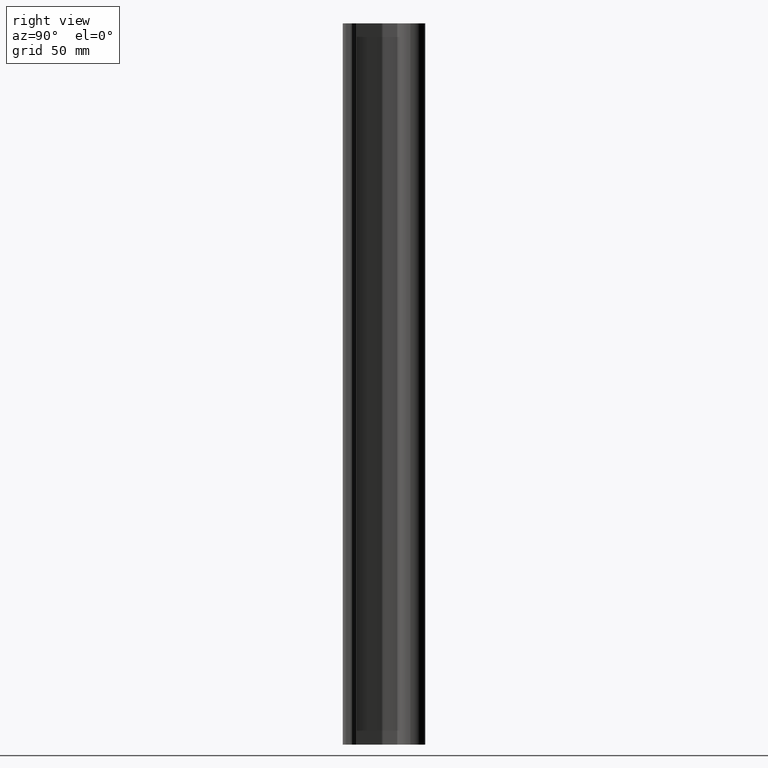
[diagram: clean part render]
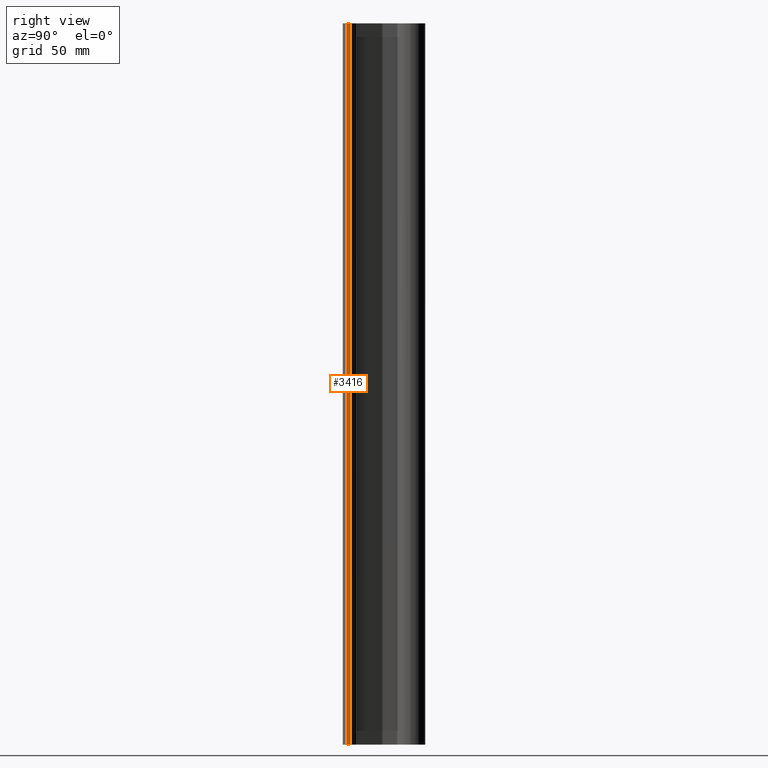
[diagram: same view with one face highlighted and labeled with its STEP entity id]
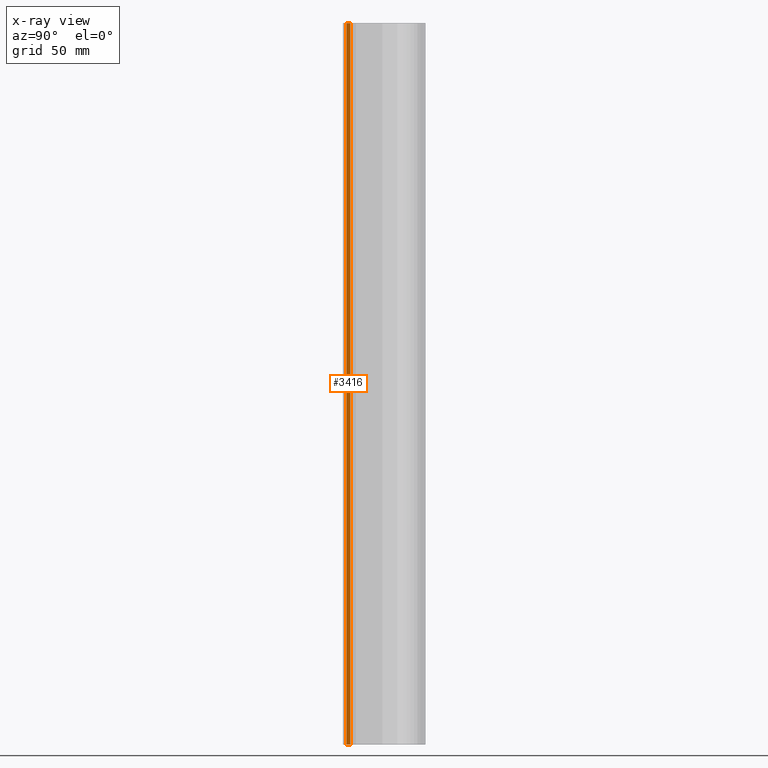
[diagram: x-ray of the same camera — body ghosted, the highlighted face saturated]
A machine part, right view. The second image highlights one B-rep face of the part: STEP entity #3416.
The next image is the same camera in x-ray: the body ghosted, the highlighted face saturated — about 0% of this face is hidden behind the body in this view.
In plain terms, the highlighted planar face has unit normal (1, 0, 0).
Its self-contained STEP definition (entity closure, byte-faithful):
#23 = EDGE_CURVE ( 'NONE', #876, #1878, #7663, .T. ) ;
#325 = ORIENTED_EDGE ( 'NONE', *, *, #584, .T. ) ;
#491 = CARTESIAN_POINT ( 'NONE',  ( 0.7500000000000003331, 0.06000000000000001166, 0.000000000000000000 ) ) ;
#584 = EDGE_CURVE ( 'NONE', #876, #3052, #6434, .T. ) ;
#876 = VERTEX_POINT ( 'NONE', #7378 ) ;
#1063 = DIRECTION ( 'NONE',  ( 0.000000000000000000, -1.000000000000000000, 0.000000000000000000 ) ) ;
#1246 = PLANE ( 'NONE',  #6114 ) ;
#1375 = DIRECTION ( 'NONE',  ( 0.000000000000000000, 0.000000000000000000, 1.000000000000000000 ) ) ;
#1878 = VERTEX_POINT ( 'NONE', #5051 ) ;
#2002 = EDGE_CURVE ( 'NONE', #3484, #3052, #7763, .T. ) ;
#2012 = CARTESIAN_POINT ( 'NONE',  ( 0.7500000000000003331, 0.1275000000000000300, 0.000000000000000000 ) ) ;
#2392 = EDGE_CURVE ( 'NONE', #1878, #3484, #2540, .T. ) ;
#2540 = LINE ( 'NONE', #5537, #5726 ) ;
#2650 = CARTESIAN_POINT ( 'NONE',  ( 0.7500000000000003331, 0.06000000000000001166, -13.75252057657289484 ) ) ;
#3052 = VERTEX_POINT ( 'NONE', #2012 ) ;
#3263 = EDGE_LOOP ( 'NONE', ( #5134, #325, #5620, #7416 ) ) ;
#3416 = ADVANCED_FACE ( 'NONE', ( #5412 ), #1246, .T. ) ;
#3484 = VERTEX_POINT ( 'NONE', #491 ) ;
#4014 = CARTESIAN_POINT ( 'NONE',  ( 0.7500000000000003331, 0.1275000000000000300, -13.75252057657289484 ) ) ;
#4170 = DIRECTION ( 'NONE',  ( 0.000000000000000000, 1.000000000000000000, 0.000000000000000000 ) ) ;
#4765 = CARTESIAN_POINT ( 'NONE',  ( 0.7500000000000003331, 0.06000000000000001166, 0.000000000000000000 ) ) ;
#4966 = VECTOR ( 'NONE', #7639, 39.37007874015748143 ) ;
#5051 = CARTESIAN_POINT ( 'NONE',  ( 0.7500000000000003331, 0.06000000000000001166, -12.00000000000000178 ) ) ;
#5134 = ORIENTED_EDGE ( 'NONE', *, *, #23, .F. ) ;
#5412 = FACE_OUTER_BOUND ( 'NONE', #3263, .T. ) ;
#5537 = CARTESIAN_POINT ( 'NONE',  ( 0.7500000000000003331, 0.06000000000000001166, -13.75252057657289484 ) ) ;
#5620 = ORIENTED_EDGE ( 'NONE', *, *, #2002, .F. ) ;
#5726 = VECTOR ( 'NONE', #1375, 39.37007874015748143 ) ;
#6114 = AXIS2_PLACEMENT_3D ( 'NONE', #2650, #7405, #6233 ) ;
#6233 = DIRECTION ( 'NONE',  ( 0.000000000000000000, 0.000000000000000000, -1.000000000000000000 ) ) ;
#6434 = LINE ( 'NONE', #4014, #4966 ) ;
#6452 = CARTESIAN_POINT ( 'NONE',  ( 0.7500000000000003331, 0.06000000000000001166, -12.00000000000000178 ) ) ;
#6715 = VECTOR ( 'NONE', #1063, 39.37007874015748143 ) ;
#6905 = VECTOR ( 'NONE', #4170, 39.37007874015748143 ) ;
#7378 = CARTESIAN_POINT ( 'NONE',  ( 0.7500000000000003331, 0.1275000000000000300, -12.00000000000000178 ) ) ;
#7405 = DIRECTION ( 'NONE',  ( 1.000000000000000000, 0.000000000000000000, 0.000000000000000000 ) ) ;
#7416 = ORIENTED_EDGE ( 'NONE', *, *, #2392, .F. ) ;
#7639 = DIRECTION ( 'NONE',  ( 0.000000000000000000, 0.000000000000000000, 1.000000000000000000 ) ) ;
#7663 = LINE ( 'NONE', #6452, #6715 ) ;
#7763 = LINE ( 'NONE', #4765, #6905 ) ;